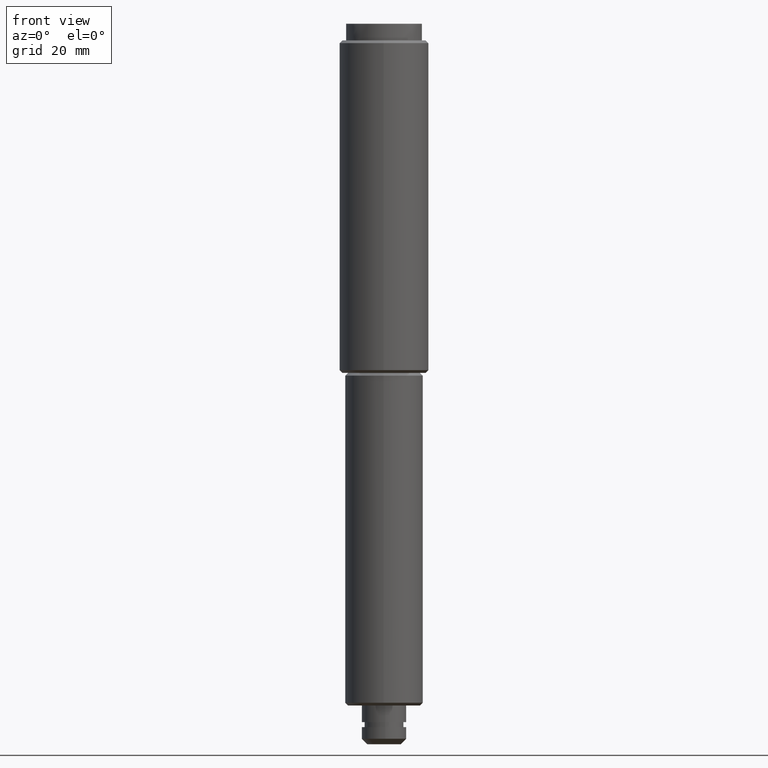
[diagram: clean part render]
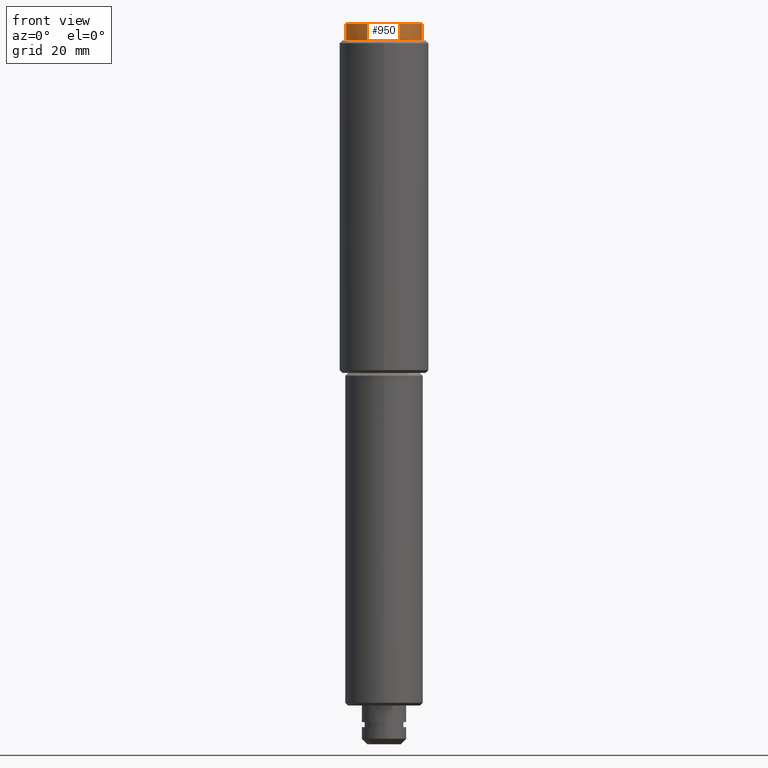
[diagram: same view with one face highlighted and labeled with its STEP entity id]
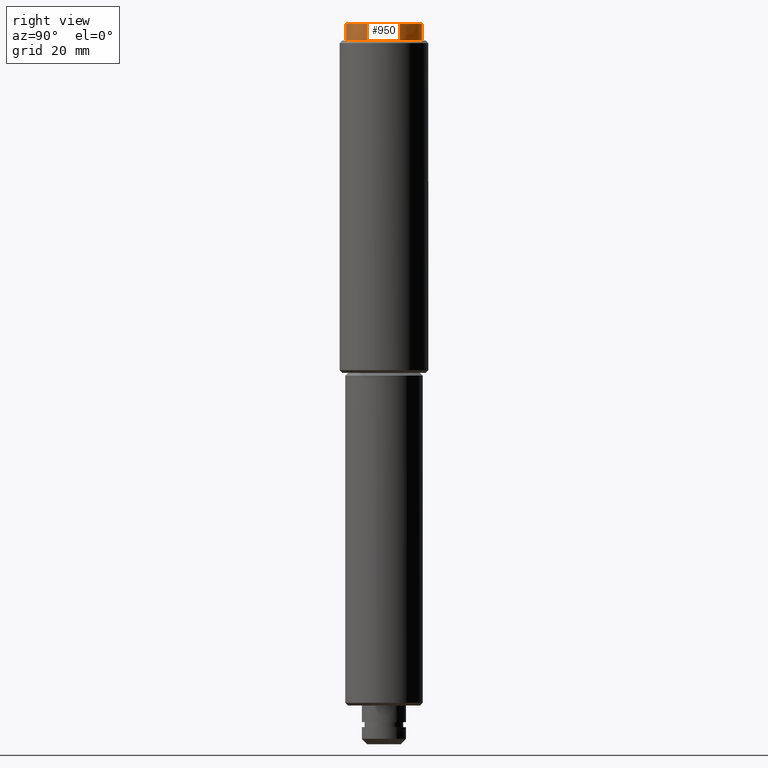
[diagram: same view with one face highlighted and labeled with its STEP entity id]
A machine part, front view. The second image highlights one B-rep face of the part: STEP entity #950.
A second angle (right view) of the same face is appended — the face is thin or edge-on in the first view.
In plain terms, the highlighted face is a freeform B-spline surface patch.
Its self-contained STEP definition (entity closure, byte-faithful):
#765=CARTESIAN_POINT('',(6.837397000000000,0.0,130.0));
#766=VERTEX_POINT('',#765);
#767=CARTESIAN_POINT('',(-6.837397000000000,0.0,130.0));
#768=VERTEX_POINT('',#767);
#769=CARTESIAN_POINT('',(6.837397000000000,0.0,130.0));
#770=CARTESIAN_POINT('',(6.837397000000000,-6.837397000000000,130.0));
#771=CARTESIAN_POINT('',(0.0,-6.837397000000000,130.0));
#772=CARTESIAN_POINT('',(-6.837397000000000,-6.837397000000000,130.0));
#773=CARTESIAN_POINT('',(-6.837397000000000,0.0,130.0));
#781=(BOUNDED_CURVE()B_SPLINE_CURVE(2,(#769,#770,#771,#772,#773),.UNSPECIFIED.,.F.,.U.)B_SPLINE_CURVE_WITH_KNOTS((3,2,3),(0.500000000000000,0.750000000000000,1.0),.UNSPECIFIED.)CURVE()GEOMETRIC_REPRESENTATION_ITEM()RATIONAL_B_SPLINE_CURVE((1.0,0.707106781186547,1.0,0.707106781186547,1.0))REPRESENTATION_ITEM(''));
#782=EDGE_CURVE('',#766,#768,#781,.T.);
#784=CARTESIAN_POINT('',(-6.837397000000000,0.0,130.0));
#785=CARTESIAN_POINT('',(-6.837397000000000,6.837397000000000,130.0));
#786=CARTESIAN_POINT('',(0.0,6.837397000000000,130.0));
#787=CARTESIAN_POINT('',(6.837397000000000,6.837397000000000,130.0));
#788=CARTESIAN_POINT('',(6.837397000000000,0.0,130.0));
#796=(BOUNDED_CURVE()B_SPLINE_CURVE(2,(#784,#785,#786,#787,#788),.UNSPECIFIED.,.F.,.U.)B_SPLINE_CURVE_WITH_KNOTS((3,2,3),(0.0,0.250000000000000,0.500000000000000),.UNSPECIFIED.)CURVE()GEOMETRIC_REPRESENTATION_ITEM()RATIONAL_B_SPLINE_CURVE((1.0,0.707106781186547,1.0,0.707106781186547,1.0))REPRESENTATION_ITEM(''));
#797=EDGE_CURVE('',#768,#766,#796,.T.);
#855=CARTESIAN_POINT('',(-6.837397165588699,0.0,127.0));
#856=VERTEX_POINT('',#855);
#857=CARTESIAN_POINT('',(6.837397165588699,0.0,127.0));
#858=VERTEX_POINT('',#857);
#859=CARTESIAN_POINT('',(-6.837397165588699,0.0,127.0));
#860=CARTESIAN_POINT('',(-6.837397165588699,6.837397165588699,126.999999999999990));
#861=CARTESIAN_POINT('',(0.0,6.837397165588699,127.0));
#862=CARTESIAN_POINT('',(6.837397165588699,6.837397165588699,126.999999999999990));
#863=CARTESIAN_POINT('',(6.837397165588699,0.0,127.0));
#871=(BOUNDED_CURVE()B_SPLINE_CURVE(2,(#859,#860,#861,#862,#863),.UNSPECIFIED.,.F.,.U.)B_SPLINE_CURVE_WITH_KNOTS((3,2,3),(0.0,0.250000000000000,0.500000000000000),.UNSPECIFIED.)CURVE()GEOMETRIC_REPRESENTATION_ITEM()RATIONAL_B_SPLINE_CURVE((1.0,0.707106781186548,1.0,0.707106781186548,1.0))REPRESENTATION_ITEM(''));
#872=EDGE_CURVE('',#856,#858,#871,.T.);
#874=CARTESIAN_POINT('',(6.837397165588699,0.0,127.0));
#875=CARTESIAN_POINT('',(6.837397165588699,-6.837397165588699,126.999999999999990));
#876=CARTESIAN_POINT('',(0.0,-6.837397165588699,127.0));
#877=CARTESIAN_POINT('',(-6.837397165588699,-6.837397165588699,126.999999999999990));
#878=CARTESIAN_POINT('',(-6.837397165588699,0.0,127.0));
#886=(BOUNDED_CURVE()B_SPLINE_CURVE(2,(#874,#875,#876,#877,#878),.UNSPECIFIED.,.F.,.U.)B_SPLINE_CURVE_WITH_KNOTS((3,2,3),(0.500000000000000,0.750000000000000,1.0),.UNSPECIFIED.)CURVE()GEOMETRIC_REPRESENTATION_ITEM()RATIONAL_B_SPLINE_CURVE((1.0,0.707106781186548,1.0,0.707106781186548,1.0))REPRESENTATION_ITEM(''));
#887=EDGE_CURVE('',#858,#856,#886,.T.);
#898=CARTESIAN_POINT('',(-4.166826266324718,-4.166826266324723,124.721757322175720));
#899=CARTESIAN_POINT('',(-3.869966882065832,-5.159955842754448,125.489637305699470));
#900=CARTESIAN_POINT('',(-1.693658975597973,-6.774635902391893,126.738095238095180));
#901=CARTESIAN_POINT('',(1.693658975597973,-6.774635902391893,126.738095238095180));
#902=CARTESIAN_POINT('',(3.869966882065832,-5.159955842754448,125.489637305699470));
#903=CARTESIAN_POINT('',(4.166826266324718,-4.166826266324723,124.721757322175720));
#904=CARTESIAN_POINT('',(-5.159955842754445,-3.869966882065838,125.489637305699470));
#905=CARTESIAN_POINT('',(-5.080976926793918,-5.080976926793921,126.738095238095180));
#906=CARTESIAN_POINT('',(-2.465028410028737,-7.395085230086207,129.123762376237610));
#907=CARTESIAN_POINT('',(2.465028410028737,-7.395085230086207,129.123762376237610));
#908=CARTESIAN_POINT('',(5.080976926793918,-5.080976926793921,126.738095238095180));
#909=CARTESIAN_POINT('',(5.159955842754445,-3.869966882065838,125.489637305699470));
#910=CARTESIAN_POINT('',(-6.774635902391893,-1.693658975597976,126.738095238095180));
#911=CARTESIAN_POINT('',(-7.395085230086207,-2.465028410028735,129.123762376237610));
#912=CARTESIAN_POINT('',(-4.526688534780055,-4.526688534780044,135.500000000000000));
#913=CARTESIAN_POINT('',(4.526688534780055,-4.526688534780044,135.500000000000000));
#914=CARTESIAN_POINT('',(7.395085230086207,-2.465028410028735,129.123762376237610));
#915=CARTESIAN_POINT('',(6.774635902391893,-1.693658975597976,126.738095238095180));
#916=CARTESIAN_POINT('',(-6.774635902391893,1.693658975597971,126.738095238095180));
#917=CARTESIAN_POINT('',(-7.395085230086207,2.465028410028738,129.123762376237610));
#918=CARTESIAN_POINT('',(-4.526688534780055,4.526688534780066,135.500000000000000));
#919=CARTESIAN_POINT('',(4.526688534780055,4.526688534780066,135.500000000000000));
#920=CARTESIAN_POINT('',(7.395085230086207,2.465028410028738,129.123762376237610));
#921=CARTESIAN_POINT('',(6.774635902391893,1.693658975597971,126.738095238095180));
#922=CARTESIAN_POINT('',(-5.159955842754445,3.869966882065830,125.489637305699450));
#923=CARTESIAN_POINT('',(-5.080976926793918,5.080976926793918,126.738095238095180));
#924=CARTESIAN_POINT('',(-2.465028410028737,7.395085230086212,129.123762376237610));
#925=CARTESIAN_POINT('',(2.465028410028737,7.395085230086212,129.123762376237610));
#926=CARTESIAN_POINT('',(5.080976926793918,5.080976926793918,126.738095238095180));
#927=CARTESIAN_POINT('',(5.159955842754445,3.869966882065830,125.489637305699450));
#928=CARTESIAN_POINT('',(-4.166826266324718,4.166826266324711,124.721757322175690));
#929=CARTESIAN_POINT('',(-3.869966882065832,5.159955842754439,125.489637305699450));
#930=CARTESIAN_POINT('',(-1.693658975597973,6.774635902391889,126.738095238095180));
#931=CARTESIAN_POINT('',(1.693658975597973,6.774635902391889,126.738095238095180));
#932=CARTESIAN_POINT('',(3.869966882065832,5.159955842754439,125.489637305699450));
#933=CARTESIAN_POINT('',(4.166826266324718,4.166826266324711,124.721757322175690));
#941=(BOUNDED_SURFACE()B_SPLINE_SURFACE(2,2,((#898,#904,#910,#916,#922,#928),(#899,#905,#911,#917,#923,#929),(#900,#906,#912,#918,#924,#930),(#901,#907,#913,#919,#925,#931),(#902,#908,#914,#920,#926,#932),(#903,#909,#915,#921,#927,#933)),.UNSPECIFIED.,.F.,.F.,.U.)B_SPLINE_SURFACE_WITH_KNOTS((3,1,1,1,3),(3,1,1,1,3),(0.0,7.487755471064748,14.975510942129500,22.463266413194241,29.951021884258989),(0.0,7.487755471064753,14.975510942129510,22.463266413194258,29.951021884259010),.UNSPECIFIED.)GEOMETRIC_REPRESENTATION_ITEM()RATIONAL_B_SPLINE_SURFACE(((4.345454545454565,3.509090909090924,2.672727272727283,2.672727272727283,3.509090909090924,4.345454545454565),(3.509090909090924,2.672727272727283,1.836363636363641,1.836363636363641,2.672727272727283,3.509090909090924),(2.672727272727283,1.836363636363641,1.0,1.0,1.836363636363641,2.672727272727283),(2.672727272727283,1.836363636363641,1.0,1.0,1.836363636363641,2.672727272727283),(3.509090909090924,2.672727272727283,1.836363636363641,1.836363636363641,2.672727272727283,3.509090909090924),(4.345454545454565,3.509090909090924,2.672727272727283,2.672727272727283,3.509090909090924,4.345454545454565)))REPRESENTATION_ITEM('')SURFACE());
#942=ORIENTED_EDGE('',*,*,#887,.F.);
#943=ORIENTED_EDGE('',*,*,#872,.F.);
#944=EDGE_LOOP('',(#942,#943));
#945=FACE_OUTER_BOUND('',#944,.T.);
#946=ORIENTED_EDGE('',*,*,#797,.T.);
#947=ORIENTED_EDGE('',*,*,#782,.T.);
#948=EDGE_LOOP('',(#946,#947));
#949=FACE_BOUND('',#948,.T.);
#950=ADVANCED_FACE('',(#945,#949),#941,.T.);